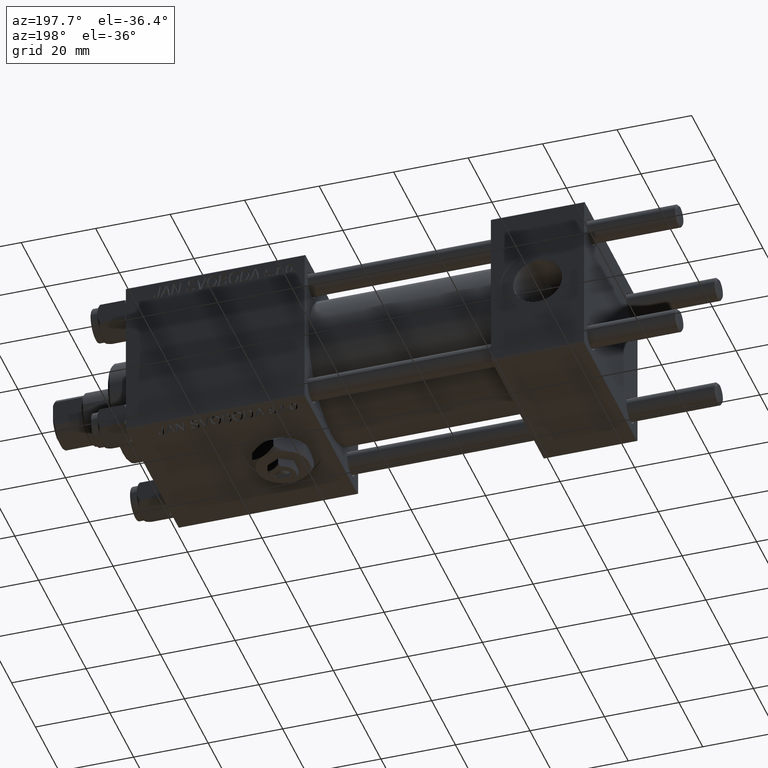
[diagram: clean part render]
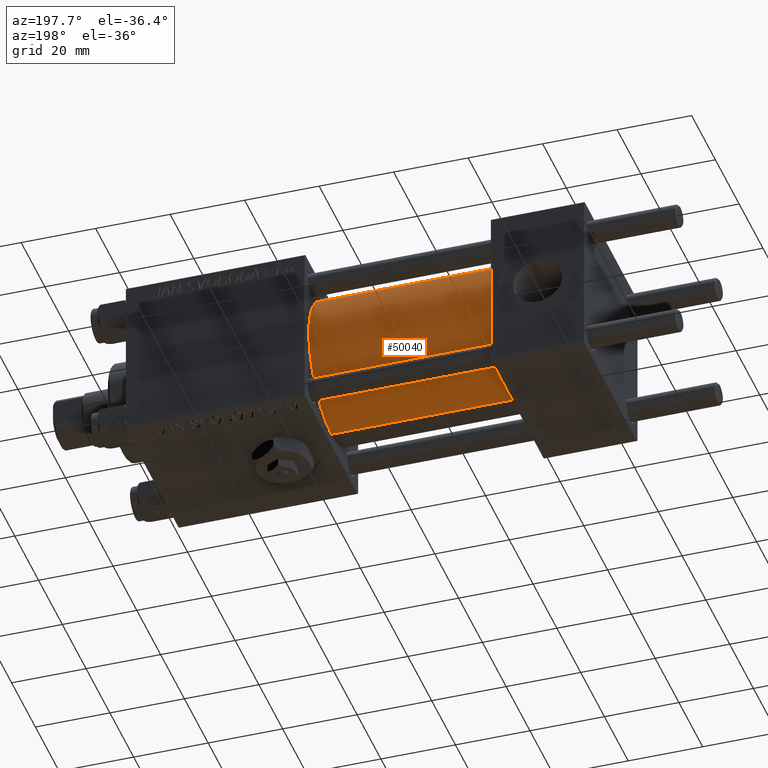
[diagram: same view with one face highlighted and labeled with its STEP entity id]
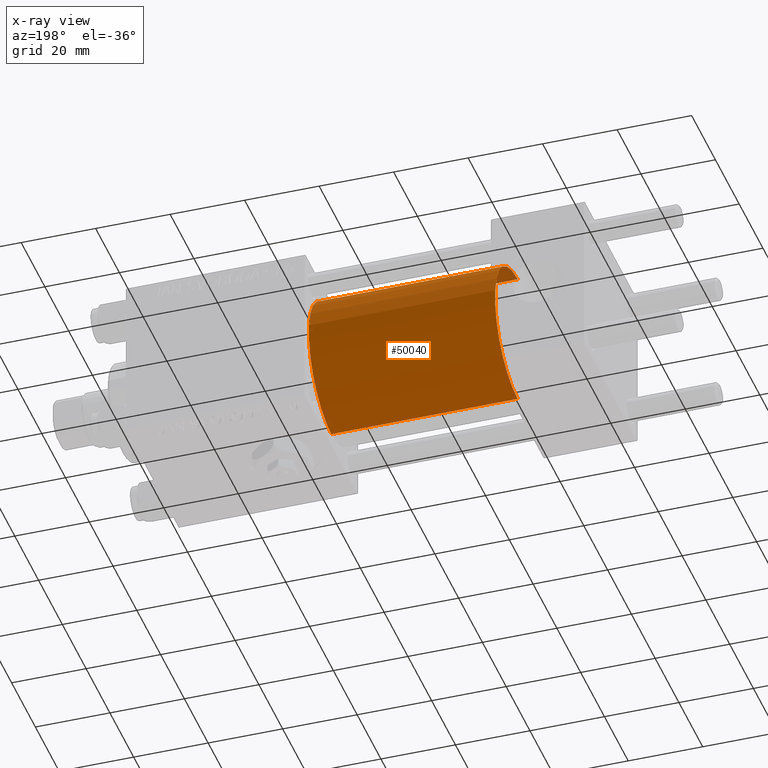
[diagram: x-ray of the same camera — body ghosted, the highlighted face saturated]
A machine part, auxiliary view. The second image highlights one B-rep face of the part: STEP entity #50040.
The next image is the same camera in x-ray: the body ghosted, the highlighted face saturated — about 1% of this face is hidden behind the body in this view.
In plain terms, the highlighted cylindrical surface (partial cylindrical patch) has radius 19 mm, axis along (-1, -0, -0).
Its self-contained STEP definition (entity closure, byte-faithful):
#37 = DIRECTION ( 'NONE',  ( 1.000000000000000000, -0.000000000000000000, 0.000000000000000000 ) ) ;
#497 = VERTEX_POINT ( 'NONE', #44422 ) ;
#1067 = DIRECTION ( 'NONE',  ( 0.000000000000000000, 0.000000000000000000, 1.000000000000000000 ) ) ;
#1715 = EDGE_CURVE ( 'NONE', #21104, #31139, #50345, .T. ) ;
#2475 = CYLINDRICAL_SURFACE ( 'NONE', #44165, 19.00000000000000000 ) ;
#4430 = EDGE_LOOP ( 'NONE', ( #6436, #32821, #22398, #13070 ) ) ;
#4964 = DIRECTION ( 'NONE',  ( -1.000000000000000000, -0.000000000000000000, -0.000000000000000000 ) ) ;
#5635 = DIRECTION ( 'NONE',  ( -1.000000000000000000, -0.000000000000000000, -0.000000000000000000 ) ) ;
#6436 = ORIENTED_EDGE ( 'NONE', *, *, #7376, .F. ) ;
#7376 = EDGE_CURVE ( 'NONE', #497, #41945, #10399, .T. ) ;
#9845 = CARTESIAN_POINT ( 'NONE',  ( 75.00000000000001421, 2.326828918379970970E-15, -19.00000000000000000 ) ) ;
#10196 = CARTESIAN_POINT ( 'NONE',  ( 75.00000000000001421, 0.000000000000000000, 0.000000000000000000 ) ) ;
#10399 = CIRCLE ( 'NONE', #44695, 19.00000000000000000 ) ;
#13070 = ORIENTED_EDGE ( 'NONE', *, *, #48598, .F. ) ;
#13139 = CARTESIAN_POINT ( 'NONE',  ( 25.00000000000000000, 0.000000000000000000, 19.00000000000000000 ) ) ;
#15074 = CARTESIAN_POINT ( 'NONE',  ( 25.00000000000000000, 2.326828918379970970E-15, -19.00000000000000000 ) ) ;
#16537 = CARTESIAN_POINT ( 'NONE',  ( 25.00000000000000000, 0.000000000000000000, 0.000000000000000000 ) ) ;
#21104 = VERTEX_POINT ( 'NONE', #15074 ) ;
#21619 = DIRECTION ( 'NONE',  ( 0.000000000000000000, 0.000000000000000000, 1.000000000000000000 ) ) ;
#22398 = ORIENTED_EDGE ( 'NONE', *, *, #1715, .T. ) ;
#27287 = EDGE_CURVE ( 'NONE', #497, #21104, #45738, .T. ) ;
#31139 = VERTEX_POINT ( 'NONE', #13139 ) ;
#31605 = VECTOR ( 'NONE', #4964, 1000.000000000000000 ) ;
#32821 = ORIENTED_EDGE ( 'NONE', *, *, #27287, .T. ) ;
#33693 = DIRECTION ( 'NONE',  ( -1.000000000000000000, -0.000000000000000000, -0.000000000000000000 ) ) ;
#38373 = FACE_OUTER_BOUND ( 'NONE', #4430, .T. ) ;
#40862 = LINE ( 'NONE', #41120, #31605 ) ;
#41120 = CARTESIAN_POINT ( 'NONE',  ( 75.00000000000001421, 0.000000000000000000, 19.00000000000000000 ) ) ;
#41150 = AXIS2_PLACEMENT_3D ( 'NONE', #16537, #37, #1067 ) ;
#41238 = VECTOR ( 'NONE', #33693, 1000.000000000000000 ) ;
#41517 = CARTESIAN_POINT ( 'NONE',  ( 75.00000000000001421, 0.000000000000000000, 0.000000000000000000 ) ) ;
#41945 = VERTEX_POINT ( 'NONE', #50111 ) ;
#42424 = DIRECTION ( 'NONE',  ( 0.000000000000000000, 0.000000000000000000, -1.000000000000000000 ) ) ;
#44165 = AXIS2_PLACEMENT_3D ( 'NONE', #41517, #5635, #21619 ) ;
#44422 = CARTESIAN_POINT ( 'NONE',  ( 75.00000000000001421, 2.326828918379970970E-15, -19.00000000000000000 ) ) ;
#44695 = AXIS2_PLACEMENT_3D ( 'NONE', #10196, #46346, #42424 ) ;
#45738 = LINE ( 'NONE', #9845, #41238 ) ;
#46346 = DIRECTION ( 'NONE',  ( 1.000000000000000000, 0.000000000000000000, 0.000000000000000000 ) ) ;
#48598 = EDGE_CURVE ( 'NONE', #41945, #31139, #40862, .T. ) ;
#50040 = ADVANCED_FACE ( 'NONE', ( #38373 ), #2475, .T. ) ;
#50111 = CARTESIAN_POINT ( 'NONE',  ( 75.00000000000001421, 0.000000000000000000, 19.00000000000000000 ) ) ;
#50345 = CIRCLE ( 'NONE', #41150, 19.00000000000000000 ) ;